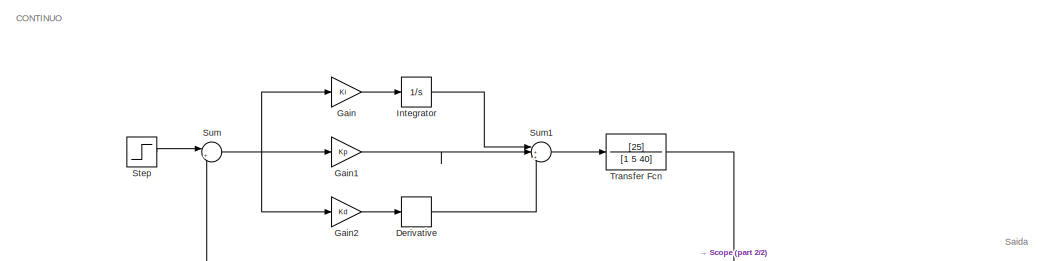
[diagram: root canvas - part 1/2, full width, top band]
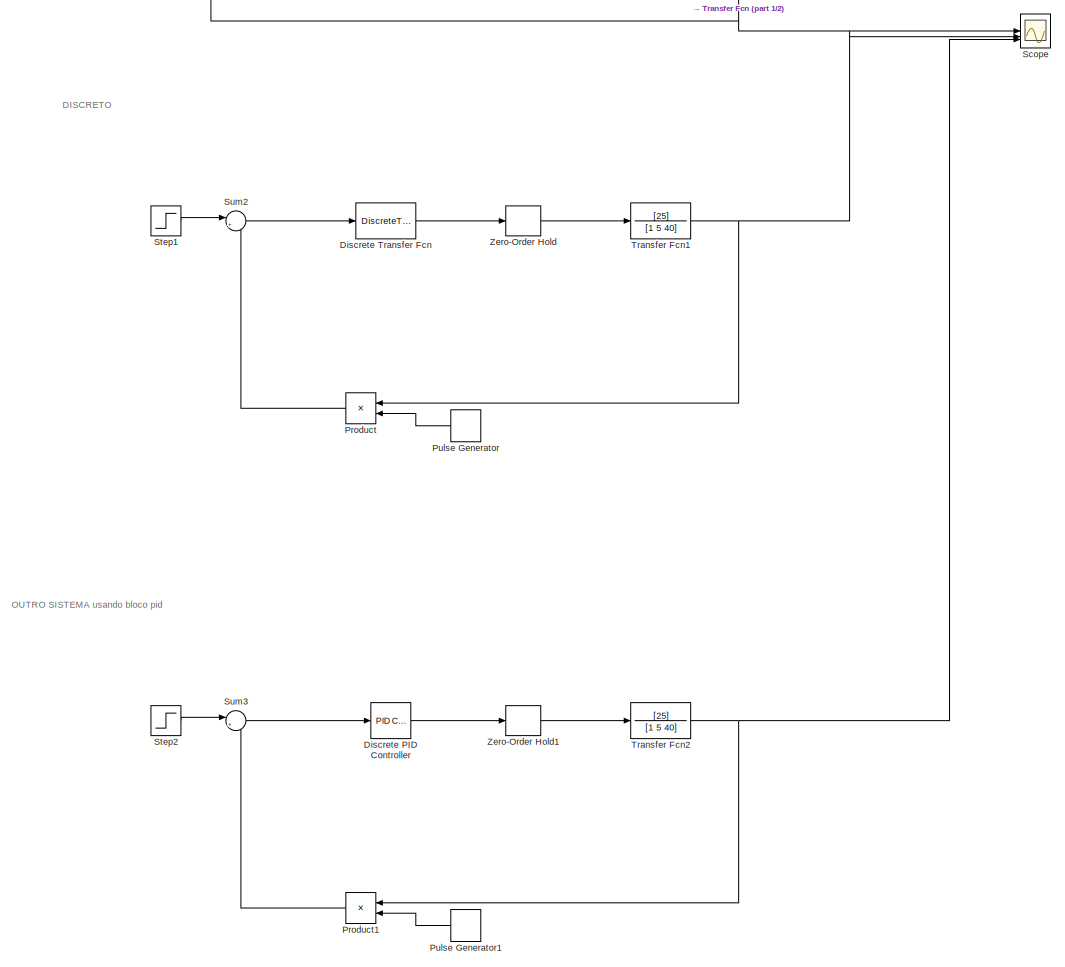
[diagram: root canvas - part 2/2, most of the canvas]
MODEL slx_22e09d005772
KIND model
CONFIG AbsTol = auto
CONFIG EnableMultiTasking = off
CONFIG FixedStep = auto
CONFIG MaxStep = auto
CONFIG MinStep = auto
CONFIG RelTol = 1e-3
CONFIG SampleTimeConstraint = Unconstrained
CONFIG SolverName = VariableStepAuto
CONFIG StartTime = 0.0
CONFIG StopTime = 3
BLOCK [Derivative] Derivative
BLOCK [Reference] Discrete PID Controller  REF=slpidlib/PID Controller
  LibrarySourceBlock = simulink/Discrete/Discrete PID Controller
  SourceBlock = slpidlib/PID Controller
  SourceType = PID 1dof
BLOCK [DiscreteTransferFcn] Discrete Transfer Fcn
  Denominator = [2*T -2*T 0]
  InputPortMap = u0
  Numerator = [Ki*T^2+2*Kp*T+2*Kd Ki*T^2-2*Kp*T-4*Kd 2*Kd]
  SampleTime = T
BLOCK [Gain] Gain
  Gain = Ki
BLOCK [Gain] Gain1
  Gain = Kp
BLOCK [Gain] Gain2
  Gain = Kd
BLOCK [Integrator] Integrator
BLOCK [Product] Product
  NameLocation = top
BLOCK [Product] Product1
  NameLocation = top
BLOCK [DiscretePulseGenerator] Pulse Generator
  NameLocation = top
  Period = T
  PulseType = Time based
  PulseWidth = 0.1
BLOCK [DiscretePulseGenerator] Pulse Generator1
  NameLocation = top
  Period = T
  PulseType = Time based
  PulseWidth = 0.1
BLOCK [Scope] Scope
  Floating = off
  NumInputPorts = 3
  ScopeSpecificationString = Simulink.scopes.TimeScopeBlockCfg('CurrentConfiguration', extmgr.ConfigurationSet(extmgr.Configuration('Core','General UI',true),extmgr.Configuration('Core','Source UI',true),extmgr.Configuration('Sources','WiredSimulink',true),extmgr.Configuration('Visuals','Time Domain',true,'SerializedDisplays',{struct('MinYLimReal','-0.13015','MaxYLimReal','1.17135','YLabelReal','','MinYLimMag','0.00000','MaxY...<+1390ch>
BLOCK [Step] Step
  SampleTime = 0
BLOCK [Step] Step1
  SampleTime = 0
BLOCK [Step] Step2
  SampleTime = 0
BLOCK [Sum] Sum
  Inputs = |+-
BLOCK [Sum] Sum1
  Inputs = |+++
BLOCK [Sum] Sum2
  Inputs = |+-
BLOCK [Sum] Sum3
  Inputs = |+-
BLOCK [TransferFcn] Transfer Fcn
  Denominator = [1 5 40]
  Numerator = [25]
BLOCK [TransferFcn] Transfer Fcn1
  Denominator = [1 5 40]
  Numerator = [25]
BLOCK [TransferFcn] Transfer Fcn2
  Denominator = [1 5 40]
  Numerator = [25]
BLOCK [ZeroOrderHold] Zero-Order Hold
  SampleTime = -1
BLOCK [ZeroOrderHold] Zero-Order Hold1
  SampleTime = -1
ANNOTATION (root): Saida
ANNOTATION (root): CONTINUO
ANNOTATION (root): DISCRETO
ANNOTATION (root): OUTRO SISTEMA usando bloco pid
LINE Derivative:1 -> Sum1:3
LINE Discrete PID Controller:1 -> Zero-Order Hold1:1
LINE Discrete Transfer Fcn:1 -> Zero-Order Hold:1
LINE Gain1:1 -> Sum1:2
LINE Gain2:1 -> Derivative:1
LINE Gain:1 -> Integrator:1
LINE Integrator:1 -> Sum1:1
LINE Product1:1 -> Sum3:2
LINE Product:1 -> Sum2:2
LINE Pulse Generator1:1 -> Product1:2
LINE Pulse Generator:1 -> Product:2
LINE Step1:1 -> Sum2:1
LINE Step2:1 -> Sum3:1
LINE Step:1 -> Sum:1
LINE Sum1:1 -> Transfer Fcn:1
LINE Sum2:1 -> Discrete Transfer Fcn:1
LINE Sum3:1 -> Discrete PID Controller:1
NET Sum:1 -> Gain1:1, Gain2:1, Gain:1
NET Transfer Fcn1:1 -> Product:1, Scope:2
NET Transfer Fcn2:1 -> Product1:1, Scope:3
NET Transfer Fcn:1 -> Scope:1, Sum:2
LINE Zero-Order Hold1:1 -> Transfer Fcn2:1
LINE Zero-Order Hold:1 -> Transfer Fcn1:1
note: NET lines group one-source signal fan-out (src -> all destinations, sorted); 1:1 wires keep LINE
